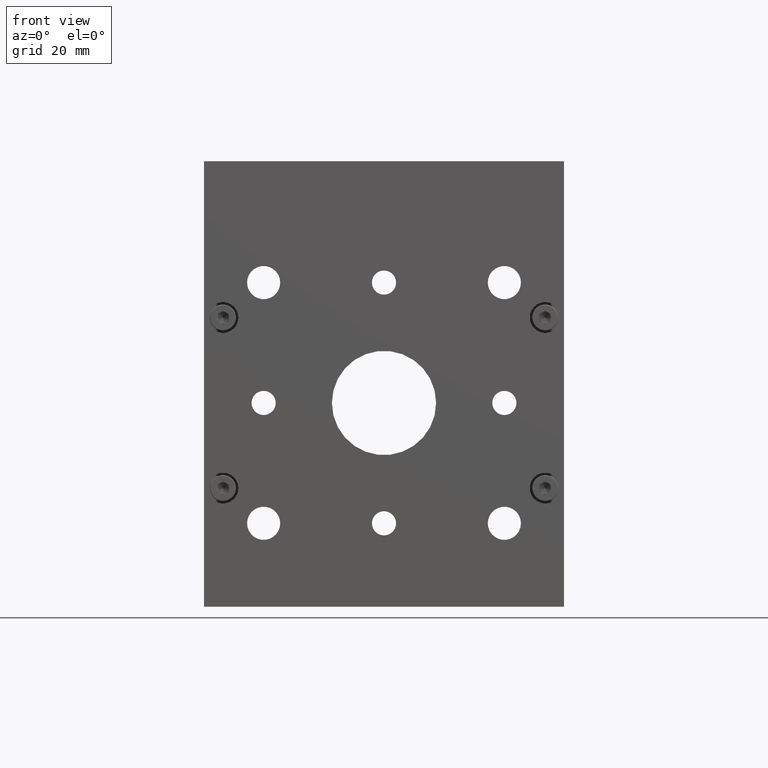
[diagram: clean part render]
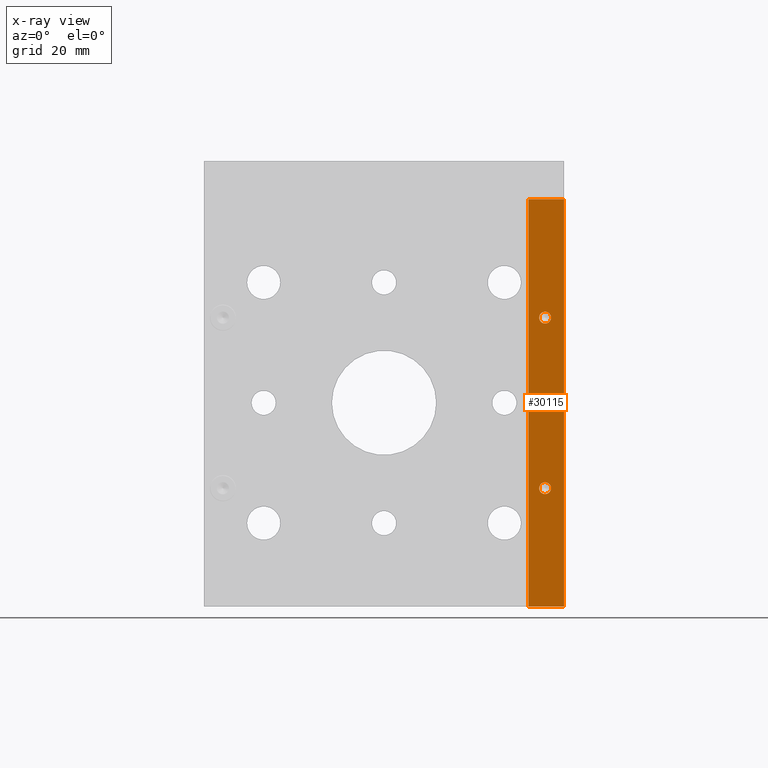
[diagram: x-ray — body ghosted, one internal face saturated and labeled with its STEP entity id]
A machine part, front view, then the same camera in x-ray: the body is ghosted and one INTERNAL B-rep face — a face not visible from any outside direction — is saturated and labeled: STEP entity #30115.
In plain terms, the highlighted planar face has unit normal (0, 1, -0).
Its self-contained STEP definition (entity closure, byte-faithful):
#69 = ORIENTED_EDGE ( 'NONE', *, *, #15759, .F. ) ;
#887 = CIRCLE ( 'NONE', #32342, 1.250000000000001100 ) ;
#1292 = AXIS2_PLACEMENT_3D ( 'NONE', #2859, #8253, #27807 ) ;
#1400 = CIRCLE ( 'NONE', #28360, 1.250000000000001100 ) ;
#1759 = DIRECTION ( 'NONE',  ( 1.232595164407830900E-031, 0.0000000000000000000, -1.000000000000000000 ) ) ;
#1940 = LINE ( 'NONE', #6502, #35344 ) ;
#2175 = DIRECTION ( 'NONE',  ( 1.243874295057008600E-031, -1.000000000000000000, 0.0000000000000000000 ) ) ;
#2417 = DIRECTION ( 'NONE',  ( -1.000000000000000000, 0.0000000000000000000, 0.0000000000000000000 ) ) ;
#2746 = EDGE_CURVE ( 'NONE', #4564, #7628, #5737, .T. ) ;
#2840 = VERTEX_POINT ( 'NONE', #11099 ) ;
#2859 = CARTESIAN_POINT ( 'NONE',  ( 34.00000000000000000, 9.999999999999994700, -18.00000000000001100 ) ) ;
#3279 = CARTESIAN_POINT ( 'NONE',  ( 35.25000000000000000, 9.999999999999994700, -18.00000000000001100 ) ) ;
#3752 = LINE ( 'NONE', #13190, #11010 ) ;
#4564 = VERTEX_POINT ( 'NONE', #22627 ) ;
#4630 = FACE_BOUND ( 'NONE', #28340, .T. ) ;
#4708 = VERTEX_POINT ( 'NONE', #10134 ) ;
#5737 = CIRCLE ( 'NONE', #1292, 1.250000000000001100 ) ;
#6502 = CARTESIAN_POINT ( 'NONE',  ( 37.99999999999999300, 10.00000000000006400, -42.99999999999987200 ) ) ;
#7201 = ORIENTED_EDGE ( 'NONE', *, *, #17278, .F. ) ;
#7310 = VERTEX_POINT ( 'NONE', #34261 ) ;
#7614 = DIRECTION ( 'NONE',  ( 1.232595164407830900E-031, 0.0000000000000000000, -1.000000000000000000 ) ) ;
#7628 = VERTEX_POINT ( 'NONE', #3279 ) ;
#7843 = EDGE_CURVE ( 'NONE', #4708, #14914, #1940, .T. ) ;
#8253 = DIRECTION ( 'NONE',  ( 1.243874295057008600E-031, -1.000000000000000000, 0.0000000000000000000 ) ) ;
#8632 = EDGE_LOOP ( 'NONE', ( #13273, #33369, #7201, #12008 ) ) ;
#8954 = DIRECTION ( 'NONE',  ( 1.243874295057008600E-031, -1.000000000000000000, 0.0000000000000000000 ) ) ;
#9036 = VECTOR ( 'NONE', #18234, 1000.000000000000000 ) ;
#10134 = CARTESIAN_POINT ( 'NONE',  ( 37.99999999999999300, 10.00000000000006400, -42.99999999999987200 ) ) ;
#10177 = FACE_OUTER_BOUND ( 'NONE', #8632, .T. ) ;
#10220 = ORIENTED_EDGE ( 'NONE', *, *, #22601, .F. ) ;
#10556 = EDGE_CURVE ( 'NONE', #16431, #20736, #20915, .T. ) ;
#10816 = CARTESIAN_POINT ( 'NONE',  ( 37.99999999999999300, 9.999999999999994700, 42.99999999999992900 ) ) ;
#11010 = VECTOR ( 'NONE', #7614, 1000.000000000000000 ) ;
#11099 = CARTESIAN_POINT ( 'NONE',  ( 35.25000000000000000, 10.00000000000006400, 17.99999999999991800 ) ) ;
#12008 = ORIENTED_EDGE ( 'NONE', *, *, #10556, .T. ) ;
#12130 = CARTESIAN_POINT ( 'NONE',  ( 34.00000000000000000, 10.00000000000006400, 17.99999999999991800 ) ) ;
#13190 = CARTESIAN_POINT ( 'NONE',  ( 37.99999999999999300, 9.999999999999994700, 42.99999999999992900 ) ) ;
#13273 = ORIENTED_EDGE ( 'NONE', *, *, #27081, .T. ) ;
#13439 = ORIENTED_EDGE ( 'NONE', *, *, #2746, .F. ) ;
#14160 = CARTESIAN_POINT ( 'NONE',  ( 37.99999999999999300, 9.999999999999994700, 42.99999999999992900 ) ) ;
#14400 = DIRECTION ( 'NONE',  ( -1.000000000000000000, 0.0000000000000000000, 0.0000000000000000000 ) ) ;
#14868 = ORIENTED_EDGE ( 'NONE', *, *, #34435, .F. ) ;
#14914 = VERTEX_POINT ( 'NONE', #26557 ) ;
#15406 = CARTESIAN_POINT ( 'NONE',  ( 37.99999999999999300, 9.999999999999994700, 42.99999999999992900 ) ) ;
#15759 = EDGE_CURVE ( 'NONE', #7310, #2840, #31669, .T. ) ;
#16154 = CARTESIAN_POINT ( 'NONE',  ( 34.00000000000000000, 9.999999999999994700, -18.00000000000001100 ) ) ;
#16431 = VERTEX_POINT ( 'NONE', #10816 ) ;
#17278 = EDGE_CURVE ( 'NONE', #16431, #4708, #3752, .T. ) ;
#18234 = DIRECTION ( 'NONE',  ( -1.000000000000000000, 1.243874295057008600E-031, 1.232595164407831200E-031 ) ) ;
#18240 = FACE_BOUND ( 'NONE', #25965, .T. ) ;
#19020 = CARTESIAN_POINT ( 'NONE',  ( 34.00000000000000000, 10.00000000000006400, 17.99999999999991800 ) ) ;
#19310 = VECTOR ( 'NONE', #1759, 1000.000000000000000 ) ;
#20068 = DIRECTION ( 'NONE',  ( 1.243874295057008600E-031, -1.000000000000000000, 0.0000000000000000000 ) ) ;
#20421 = DIRECTION ( 'NONE',  ( -1.000000000000000000, 0.0000000000000000000, 0.0000000000000000000 ) ) ;
#20736 = VERTEX_POINT ( 'NONE', #33437 ) ;
#20915 = LINE ( 'NONE', #15406, #9036 ) ;
#22601 = EDGE_CURVE ( 'NONE', #2840, #7310, #887, .T. ) ;
#22627 = CARTESIAN_POINT ( 'NONE',  ( 32.75000000000000000, 9.999999999999994700, -18.00000000000001100 ) ) ;
#22676 = DIRECTION ( 'NONE',  ( -1.000000000000000000, 1.243874295057008600E-031, 1.232595164407831200E-031 ) ) ;
#24891 = DIRECTION ( 'NONE',  ( 1.000000000000000000, -1.243874295057008600E-031, -1.232595164407831200E-031 ) ) ;
#25965 = EDGE_LOOP ( 'NONE', ( #69, #10220 ) ) ;
#26557 = CARTESIAN_POINT ( 'NONE',  ( 30.50000000000000000, 10.00000000000006400, -42.99999999999987200 ) ) ;
#27025 = AXIS2_PLACEMENT_3D ( 'NONE', #14160, #27436, #24891 ) ;
#27081 = EDGE_CURVE ( 'NONE', #20736, #14914, #33074, .T. ) ;
#27436 = DIRECTION ( 'NONE',  ( 1.243874295057008600E-031, 1.000000000000000000, -3.066386882436937300E-062 ) ) ;
#27807 = DIRECTION ( 'NONE',  ( -1.000000000000000000, 0.0000000000000000000, 0.0000000000000000000 ) ) ;
#28340 = EDGE_LOOP ( 'NONE', ( #13439, #14868 ) ) ;
#28360 = AXIS2_PLACEMENT_3D ( 'NONE', #16154, #2175, #2417 ) ;
#29609 = AXIS2_PLACEMENT_3D ( 'NONE', #12130, #20068, #20421 ) ;
#30115 = ADVANCED_FACE ( 'NONE', ( #4630, #18240, #10177 ), #30307, .F. ) ;
#30307 = PLANE ( 'NONE',  #27025 ) ;
#31669 = CIRCLE ( 'NONE', #29609, 1.250000000000001100 ) ;
#32342 = AXIS2_PLACEMENT_3D ( 'NONE', #19020, #8954, #14400 ) ;
#33074 = LINE ( 'NONE', #34653, #19310 ) ;
#33369 = ORIENTED_EDGE ( 'NONE', *, *, #7843, .F. ) ;
#33437 = CARTESIAN_POINT ( 'NONE',  ( 30.50000000000000000, 9.999999999999994700, 42.99999999999992900 ) ) ;
#34261 = CARTESIAN_POINT ( 'NONE',  ( 32.75000000000000000, 10.00000000000006400, 17.99999999999991800 ) ) ;
#34435 = EDGE_CURVE ( 'NONE', #7628, #4564, #1400, .T. ) ;
#34653 = CARTESIAN_POINT ( 'NONE',  ( 30.50000000000000000, 9.999999999999994700, 42.99999999999992900 ) ) ;
#35344 = VECTOR ( 'NONE', #22676, 1000.000000000000000 ) ;